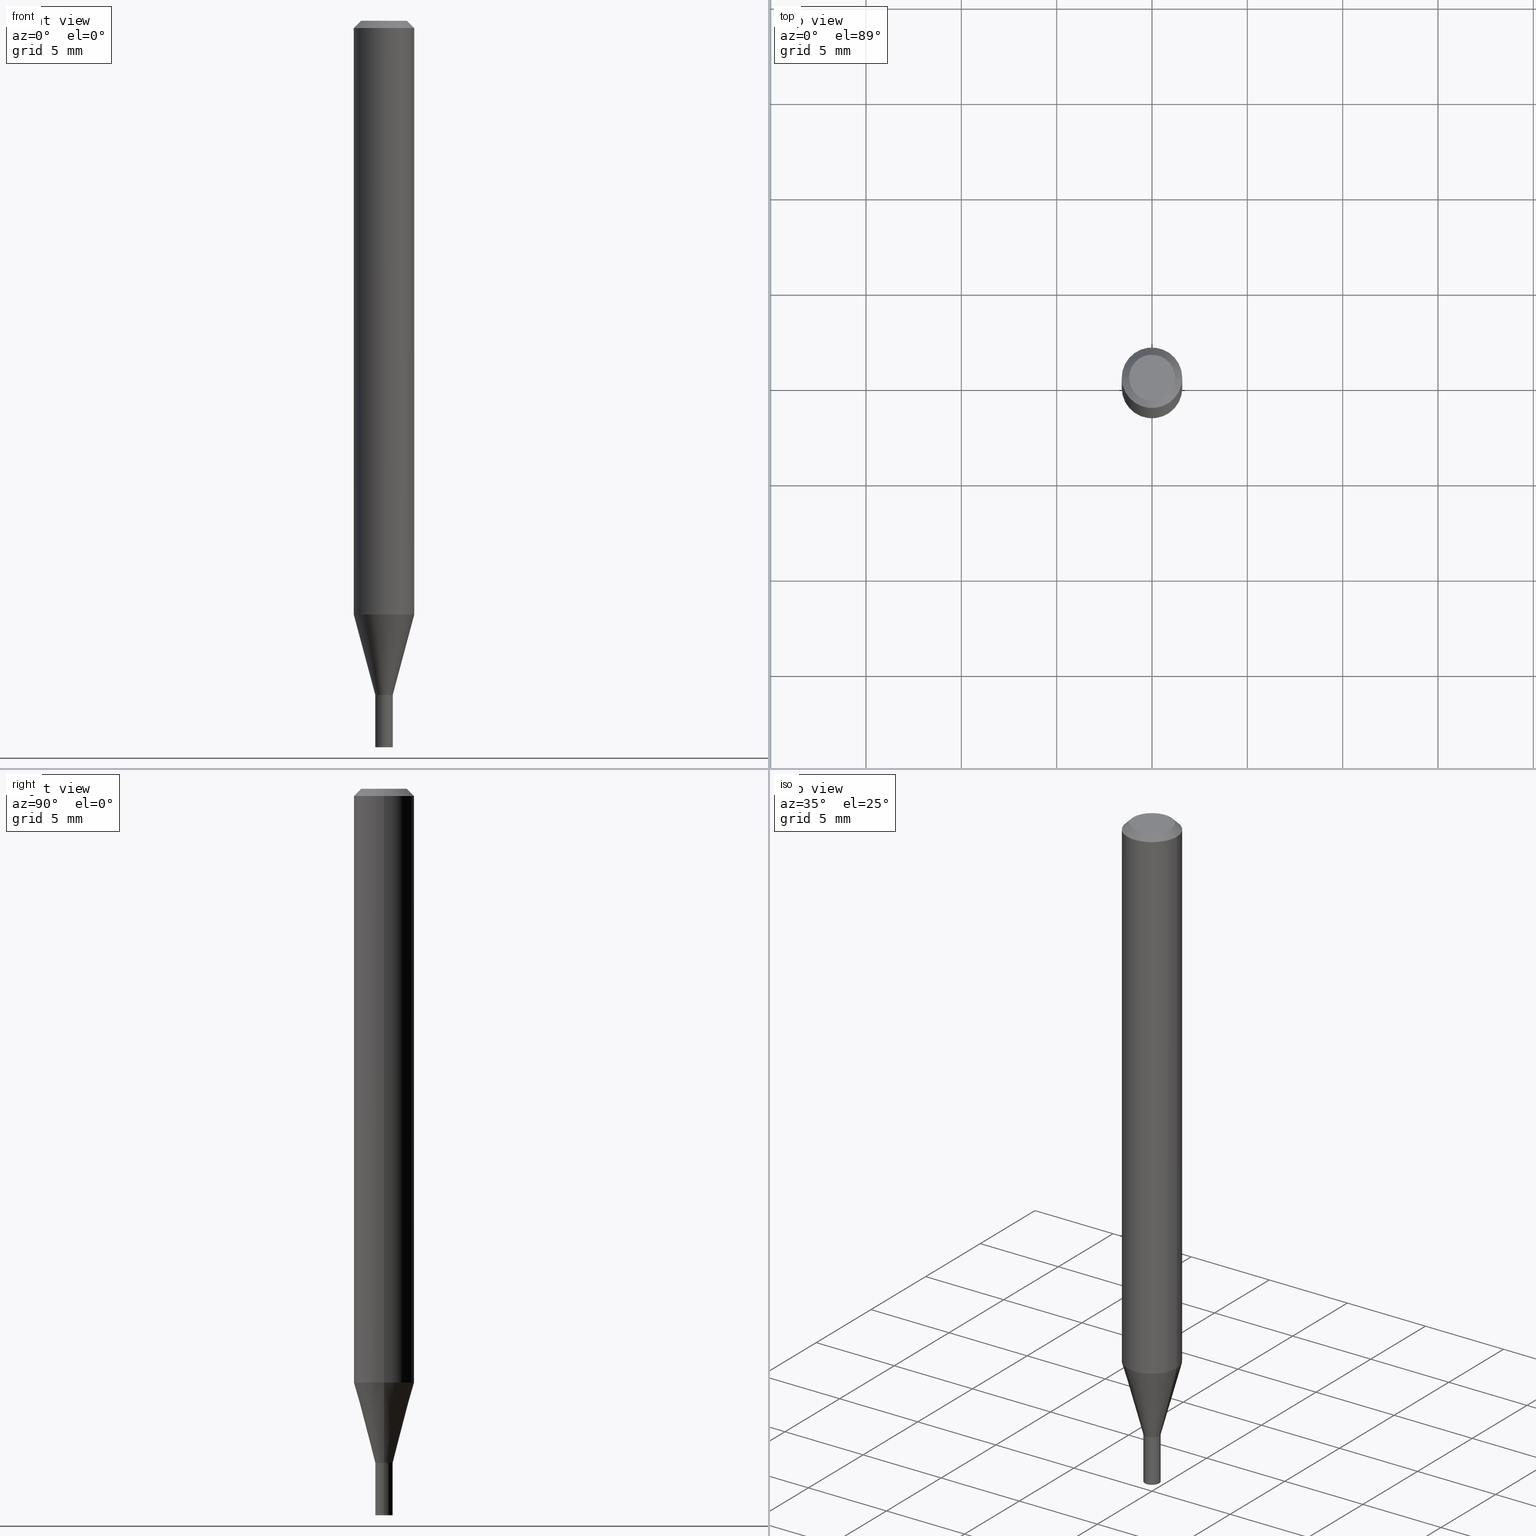
[diagram: canonical four-view strip — front | top / right | iso, engineering-drawing reading convention]
A machine part, canonical four-view strip (front | top / right | iso — engineering-drawing reading convention). The complete STEP part file that produces these views, byte-faithful:
ISO-10303-21;
HEADER;
FILE_DESCRIPTION (( 'STEP AP203' ),
    '1' );
FILE_NAME ('04142.STEP',
    '2024-03-14T17:05:38',
    ( '' ),
    ( '' ),
    'SwSTEP 2.0',
    'SolidWorks 2023',
    '' );
FILE_SCHEMA (( 'CONFIG_CONTROL_DESIGN' ));
ENDSEC;

DATA;
#1 = ORIENTED_EDGE ( 'NONE', *, *, #313, .T. ) ;
#2 = DIRECTION ( 'NONE',  ( 2.445468806185136597E-29, -3.491481338843145583E-15, -1.000000000000000000 ) ) ;
#3 = CARTESIAN_POINT ( 'NONE',  ( 0.06250000000000000000, -4.716725025139311787E-15, -1.225923739063184081 ) ) ;
#4 = CIRCLE ( 'NONE', #100, 0.01799999999999964476 ) ;
#5 = DIRECTION ( 'NONE',  ( 1.000000000000000000, -6.982962677686279332E-15, 0.000000000000000000 ) ) ;
#6 = ORIENTED_EDGE ( 'NONE', *, *, #319, .F. ) ;
#7 = CARTESIAN_POINT ( 'NONE',  ( -0.01799999999999999864, -4.920784323530369756E-15, -1.500000000000000222 ) ) ;
#8 = FACE_OUTER_BOUND ( 'NONE', #215, .T. ) ;
#9 = AXIS2_PLACEMENT_3D ( 'NONE', #43, #259, #49 ) ;
#10 = CALENDAR_DATE ( 2024, 14, 3 ) ;
#11 = DIRECTION ( 'NONE',  ( -2.445468806185136597E-29, 3.491481338843145583E-15, 1.000000000000000000 ) ) ;
#12 = DIRECTION ( 'NONE',  ( -2.445468806185136877E-29, 3.491481338843145188E-15, 1.000000000000000000 ) ) ;
#13 = PERSON_AND_ORGANIZATION ( #161, #256 ) ;
#14 = CIRCLE ( 'NONE', #274, 0.01749999999999999820 ) ;
#15 = AXIS2_PLACEMENT_3D ( 'NONE', #196, #27, #56 ) ;
#16 = CC_DESIGN_DATE_AND_TIME_ASSIGNMENT ( #443, #46, ( #82 ) ) ;
#17 = CARTESIAN_POINT ( 'NONE',  ( -0.01749999999999999820, -4.733147817737530757E-15, -1.391999999999999904 ) ) ;
#18 = PERSON_AND_ORGANIZATION_ROLE ( 'creator' ) ;
#19 = DIRECTION ( 'NONE',  ( 1.000000000000000000, -6.982962677686266711E-15, 4.876176775795935793E-29 ) ) ;
#20 = EDGE_CURVE ( 'NONE', #459, #385, #432, .T. ) ;
#21 = DIRECTION ( 'NONE',  ( 1.000000000000000000, -6.982962677686279332E-15, 0.000000000000000000 ) ) ;
#22 = PRODUCT_RELATED_PRODUCT_CATEGORY ( 'detail', '', ( #268 ) ) ;
#23 = VERTEX_POINT ( 'NONE', #3 ) ;
#24 = AXIS2_PLACEMENT_3D ( 'NONE', #386, #67, #316 ) ;
#25 = CIRCLE ( 'NONE', #245, 0.01799999999999999864 ) ;
#26 = UNCERTAINTY_MEASURE_WITH_UNIT (LENGTH_MEASURE( 1.000000000000000082E-05 ), #33, 'distance_accuracy_value', 'NONE');
#27 = DIRECTION ( 'NONE',  ( -2.445468806185136597E-29, 3.491481338843145583E-15, 1.000000000000000000 ) ) ;
#28 = ORIENTED_EDGE ( 'NONE', *, *, #153, .T. ) ;
#29 = DIRECTION ( 'NONE',  ( 0.000000000000000000, 0.000000000000000000, 1.000000000000000000 ) ) ;
#30 = ORIENTED_EDGE ( 'NONE', *, *, #452, .F. ) ;
#31 = DIRECTION ( 'NONE',  ( 1.000000000000000000, -6.982962677686267499E-15, 4.876176775795935793E-29 ) ) ;
#32 = ORIENTED_EDGE ( 'NONE', *, *, #361, .F. ) ;
#33 =( CONVERSION_BASED_UNIT ( 'INCH', #387 ) LENGTH_UNIT ( ) NAMED_UNIT ( #455 ) );
#34 = ADVANCED_FACE ( 'NONE', ( #382 ), #359, .T. ) ;
#35 = VECTOR ( 'NONE', #40, 39.37007874015748143 ) ;
#36 = ORIENTED_EDGE ( 'NONE', *, *, #68, .F. ) ;
#37 = LINE ( 'NONE', #429, #42 ) ;
#38 = EDGE_LOOP ( 'NONE', ( #454, #422, #61, #77 ) ) ;
#39 = ADVANCED_FACE ( 'NONE', ( #272 ), #76, .T. ) ;
#40 = DIRECTION ( 'NONE',  ( -0.7071067811865642261, 7.493145998870414114E-15, 0.7071067811865309194 ) ) ;
#41 = ORIENTED_EDGE ( 'NONE', *, *, #389, .F. ) ;
#42 = VECTOR ( 'NONE', #287, 39.37007874015748143 ) ;
#43 = CARTESIAN_POINT ( 'NONE',  ( 3.404092578209709663E-29, -4.860142023669657629E-15, -1.391999999999999904 ) ) ;
#44 = EDGE_CURVE ( 'NONE', #201, #23, #283, .T. ) ;
#45 = COORDINATED_UNIVERSAL_TIME_OFFSET ( 5, 0, .BEHIND. ) ;
#46 = DATE_TIME_ROLE ( 'classification_date' ) ;
#47 = LINE ( 'NONE', #121, #156 ) ;
#48 = PERSON_AND_ORGANIZATION ( #161, #256 ) ;
#49 = DIRECTION ( 'NONE',  ( 1.000000000000000000, -6.982962677686250144E-15, 0.000000000000000000 ) ) ;
#50 = APPROVAL ( #298, 'UNSPECIFIED' ) ;
#51 = COORDINATED_UNIVERSAL_TIME_OFFSET ( 5, 0, .BEHIND. ) ;
#52 = CARTESIAN_POINT ( 'NONE',  ( 1.278896122067429216E-44, -1.825924719719875646E-30, -5.229656247639779395E-16 ) ) ;
#53 = AXIS2_PLACEMENT_3D ( 'NONE', #107, #214, #249 ) ;
#54 = CC_DESIGN_APPROVAL ( #170, ( #253 ) ) ;
#55 = EDGE_CURVE ( 'NONE', #96, #211, #349, .T. ) ;
#56 = DIRECTION ( 'NONE',  ( 1.000000000000000000, -6.982962677686253300E-15, 0.000000000000000000 ) ) ;
#57 = ADVANCED_FACE ( 'NONE', ( #279 ), #255, .T. ) ;
#58 = DIRECTION ( 'NONE',  ( -2.438088387897960049E-29, 3.491481338843145188E-15, 1.000000000000000000 ) ) ;
#59 = EDGE_LOOP ( 'NONE', ( #284, #114, #399, #344 ) ) ;
#60 = DIRECTION ( 'NONE',  ( -2.445468806185136597E-29, 3.491481338843145583E-15, 1.000000000000000000 ) ) ;
#61 = ORIENTED_EDGE ( 'NONE', *, *, #391, .F. ) ;
#62 = AXIS2_PLACEMENT_3D ( 'NONE', #441, #446, #226 ) ;
#63 = CIRCLE ( 'NONE', #188, 0.01799999999999999864 ) ;
#64 = ORIENTED_EDGE ( 'NONE', *, *, #236, .F. ) ;
#65 = DIRECTION ( 'NONE',  ( 1.000000000000000000, -6.982962677686250144E-15, 0.000000000000000000 ) ) ;
#66 = EDGE_LOOP ( 'NONE', ( #251, #131, #465, #241 ) ) ;
#67 = DIRECTION ( 'NONE',  ( -2.445468806185136597E-29, 3.491481338843145583E-15, 1.000000000000000000 ) ) ;
#68 = EDGE_CURVE ( 'NONE', #459, #380, #383, .T. ) ;
#69 =( LENGTH_UNIT ( ) NAMED_UNIT ( * ) SI_UNIT ( $, .METRE. ) );
#70 = CC_DESIGN_PERSON_AND_ORGANIZATION_ASSIGNMENT ( #13, #328, ( #82 ) ) ;
#71 = CARTESIAN_POINT ( 'NONE',  ( 0.000000000000000000, 0.000000000000000000, 0.000000000000000000 ) ) ;
#72 = DIRECTION ( 'NONE',  ( 1.000000000000000000, -6.982962677686254878E-15, 0.000000000000000000 ) ) ;
#73 = VECTOR ( 'NONE', #244, 39.37007874015748143 ) ;
#74 = ORIENTED_EDGE ( 'NONE', *, *, #375, .F. ) ;
#75 = CARTESIAN_POINT ( 'NONE',  ( 1.256933281983868125E-16, 0.01799999999999513794, -1.392000000000000126 ) ) ;
#76 = CYLINDRICAL_SURFACE ( 'NONE', #24, 0.01799999999999999864 ) ;
#77 = ORIENTED_EDGE ( 'NONE', *, *, #124, .F. ) ;
#78 = CYLINDRICAL_SURFACE ( 'NONE', #393, 0.06250000000000000000 ) ;
#79 = APPLICATION_CONTEXT ( 'configuration controlled 3d designs of mechanical parts and assemblies' ) ;
#80 = CIRCLE ( 'NONE', #332, 0.04749999999999999362 ) ;
#81 = ORIENTED_EDGE ( 'NONE', *, *, #448, .F. ) ;
#82 = SECURITY_CLASSIFICATION ( '', '', #324 ) ;
#83 = CARTESIAN_POINT ( 'NONE',  ( 3.404092578209710223E-29, -4.860142023669658418E-15, -1.392000000000000126 ) ) ;
#84 = APPROVAL_DATE_TIME ( #194, #50 ) ;
#85 = CARTESIAN_POINT ( 'NONE',  ( -0.06250000000000000000, -3.836200647933857502E-15, -1.225923739063184081 ) ) ;
#86 = AXIS2_PLACEMENT_3D ( 'NONE', #204, #275, #165 ) ;
#87 = DATE_AND_TIME ( #154, #367 ) ;
#88 = PERSON_AND_ORGANIZATION ( #161, #256 ) ;
#89 = FACE_OUTER_BOUND ( 'NONE', #396, .T. ) ;
#90 = VECTOR ( 'NONE', #168, 39.37007874015748854 ) ;
#91 = CARTESIAN_POINT ( 'NONE',  ( 3.668203209277704895E-29, -5.237222008264718177E-15, -1.500000000000000222 ) ) ;
#92 = EDGE_CURVE ( 'NONE', #362, #318, #353, .T. ) ;
#93 = LINE ( 'NONE', #306, #90 ) ;
#94 = CARTESIAN_POINT ( 'NONE',  ( 0.01799999999999964823, -1.256933281983503524E-16, 8.777118196432512908E-31 ) ) ;
#95 = MANIFOLD_SOLID_BREP ( 'Body-Move/Copy2[1]', #311 ) ;
#96 = VERTEX_POINT ( 'NONE', #181 ) ;
#97 = DIRECTION ( 'NONE',  ( 1.000000000000000000, -6.982962677686266711E-15, 0.000000000000000000 ) ) ;
#98 = APPLICATION_CONTEXT ( 'configuration controlled 3d designs of mechanical parts and assemblies' ) ;
#99 = ORIENTED_EDGE ( 'NONE', *, *, #435, .T. ) ;
#100 = AXIS2_PLACEMENT_3D ( 'NONE', #411, #440, #118 ) ;
#101 = CIRCLE ( 'NONE', #343, 0.01799999999999999864 ) ;
#102 = ORIENTED_EDGE ( 'NONE', *, *, #20, .T. ) ;
#103 = DIRECTION ( 'NONE',  ( -2.445468806185136597E-29, 3.491481338843145583E-15, 1.000000000000000000 ) ) ;
#104 = VERTEX_POINT ( 'NONE', #192 ) ;
#105 = CARTESIAN_POINT ( 'NONE',  ( 3.404092578209710223E-29, -4.860142023669658418E-15, -1.392000000000000126 ) ) ;
#106 = CARTESIAN_POINT ( 'NONE',  ( -0.06250000000000000000, -1.722241829083221574E-15, -0.01499999999999999944 ) ) ;
#107 = CARTESIAN_POINT ( 'NONE',  ( 1.278896122067429216E-44, -1.825924719719875646E-30, -5.229656247639779395E-16 ) ) ;
#108 = ADVANCED_FACE ( 'NONE', ( #381 ), #238, .F. ) ;
#109 = CC_DESIGN_PERSON_AND_ORGANIZATION_ASSIGNMENT ( #117, #335, ( #253 ) ) ;
#110 = AXIS2_PLACEMENT_3D ( 'NONE', #395, #358, #5 ) ;
#111 = DIRECTION ( 'NONE',  ( -2.445468806185136597E-29, 3.491481338843145583E-15, 1.000000000000000000 ) ) ;
#112 = LOCAL_TIME ( 13, 5, 38.00000000000000000, #51 ) ;
#113 = ORIENTED_EDGE ( 'NONE', *, *, #452, .T. ) ;
#114 = ORIENTED_EDGE ( 'NONE', *, *, #44, .T. ) ;
#115 = AXIS2_PLACEMENT_3D ( 'NONE', #304, #339, #31 ) ;
#116 = CARTESIAN_POINT ( 'NONE',  ( 0.01799999999999999864, -4.985835351868011408E-15, -1.392000000000000126 ) ) ;
#117 = PERSON_AND_ORGANIZATION ( #161, #256 ) ;
#118 = DIRECTION ( 'NONE',  ( 1.000000000000000000, -6.982962677686254878E-15, 0.000000000000000000 ) ) ;
#119 = ADVANCED_FACE ( 'NONE', ( #199 ), #337, .F. ) ;
#120 =( NAMED_UNIT ( * ) PLANE_ANGLE_UNIT ( ) SI_UNIT ( $, .RADIAN. ) );
#121 = CARTESIAN_POINT ( 'NONE',  ( 0.06250000000000000000, -4.364351673553916694E-16, 3.047610484872459871E-30 ) ) ;
#122 = CALENDAR_DATE ( 2024, 14, 3 ) ;
#123 = CYLINDRICAL_SURFACE ( 'NONE', #115, 0.01799999999999964823 ) ;
#124 = EDGE_CURVE ( 'NONE', #166, #23, #93, .T. ) ;
#125 = DESIGN_CONTEXT ( 'detailed design', #98, 'design' ) ;
#126 = FACE_OUTER_BOUND ( 'NONE', #38, .T. ) ;
#127 = AXIS2_PLACEMENT_3D ( 'NONE', #390, #2, #466 ) ;
#128 = VECTOR ( 'NONE', #237, 39.37007874015748143 ) ;
#129 = LINE ( 'NONE', #94, #128 ) ;
#130 = EDGE_CURVE ( 'NONE', #201, #144, #457, .T. ) ;
#131 = ORIENTED_EDGE ( 'NONE', *, *, #389, .T. ) ;
#132 = CARTESIAN_POINT ( 'NONE',  ( 3.404092578209709663E-29, -4.860142023669657629E-15, -1.391999999999999904 ) ) ;
#133 = VERTEX_POINT ( 'NONE', #7 ) ;
#134 = ORIENTED_EDGE ( 'NONE', *, *, #319, .T. ) ;
#135 = DIRECTION ( 'NONE',  ( 1.000000000000000000, -6.982962677686270655E-15, 0.000000000000000000 ) ) ;
#136 = CC_DESIGN_APPROVAL ( #222, ( #82 ) ) ;
#137 = DIRECTION ( 'NONE',  ( 0.7071067811865598962, -7.319954787623298644E-15, -0.7071067811865351382 ) ) ;
#138 = EDGE_CURVE ( 'NONE', #462, #211, #341, .T. ) ;
#139 = EDGE_LOOP ( 'NONE', ( #285, #434, #309, #169 ) ) ;
#140 = EDGE_CURVE ( 'NONE', #400, #318, #37, .T. ) ;
#141 = CARTESIAN_POINT ( 'NONE',  ( -0.06250000000000000000, 3.840629472727444916E-16, -0.01499999999999999944 ) ) ;
#142 = ORIENTED_EDGE ( 'NONE', *, *, #138, .T. ) ;
#143 = VECTOR ( 'NONE', #282, 39.37007874015748143 ) ;
#144 = VERTEX_POINT ( 'NONE', #106 ) ;
#145 = CC_DESIGN_SECURITY_CLASSIFICATION ( #82, ( #276 ) ) ;
#146 = ORIENTED_EDGE ( 'NONE', *, *, #338, .T. ) ;
#147 = EDGE_LOOP ( 'NONE', ( #252, #270, #377, #30 ) ) ;
#148 = ADVANCED_FACE ( 'NONE', ( #185 ), #220, .F. ) ;
#149 = LOCAL_TIME ( 13, 5, 38.00000000000000000, #370 ) ;
#150 = CYLINDRICAL_SURFACE ( 'NONE', #322, 0.01799999999999999864 ) ;
#151 = CALENDAR_DATE ( 2024, 14, 3 ) ;
#152 = ADVANCED_FACE ( 'NONE', ( #180 ), #351, .T. ) ;
#153 = EDGE_CURVE ( 'NONE', #380, #144, #174, .T. ) ;
#154 = CALENDAR_DATE ( 2024, 14, 3 ) ;
#155 = FACE_OUTER_BOUND ( 'NONE', #147, .T. ) ;
#156 = VECTOR ( 'NONE', #12, 39.37007874015748143 ) ;
#157 = CC_DESIGN_APPROVAL ( #50, ( #276 ) ) ;
#158 = CALENDAR_DATE ( 2024, 14, 3 ) ;
#159 = CARTESIAN_POINT ( 'NONE',  ( 3.404092578209710223E-29, -4.860142023669658418E-15, -1.392000000000000126 ) ) ;
#160 = PERSON_AND_ORGANIZATION ( #161, #256 ) ;
#161 = PERSON ( 'UNSPECIFIED', 'UNSPECIFIED', 'UNSPECIFIED', ('UNSPECIFIED'), ('UNSPECIFIED'), ('UNSPECIFIED') ) ;
#162 = CARTESIAN_POINT ( 'NONE',  ( -0.01799999999999999864, 1.278976924368180238E-16, -8.854083162458829188E-31 ) ) ;
#163 = CARTESIAN_POINT ( 'NONE',  ( 3.404092578209709663E-29, -4.860142023669657629E-15, -1.391999999999999904 ) ) ;
#164 = VECTOR ( 'NONE', #186, 39.37007874015748854 ) ;
#165 = DIRECTION ( 'NONE',  ( -1.000000000000000000, 6.982962677686265922E-15, -4.876176775795935793E-29 ) ) ;
#166 = VERTEX_POINT ( 'NONE', #433 ) ;
#167 = CARTESIAN_POINT ( 'NONE',  ( 0.04749999999999999362, -4.035134999187587991E-16, -5.229656247639753758E-16 ) ) ;
#168 = DIRECTION ( 'NONE',  ( 0.2588190451025212391, 1.565188264969622362E-15, 0.9659258262890679791 ) ) ;
#169 = ORIENTED_EDGE ( 'NONE', *, *, #265, .F. ) ;
#170 = APPROVAL ( #439, 'UNSPECIFIED' ) ;
#171 = CARTESIAN_POINT ( 'NONE',  ( 0.06250000000000000000, -4.811533449433679005E-16, -0.01499999999999999944 ) ) ;
#172 = DIRECTION ( 'NONE',  ( 1.000000000000000000, -6.982962677686265922E-15, 4.876176775795935793E-29 ) ) ;
#173 = CARTESIAN_POINT ( 'NONE',  ( 0.01799999999999999864, -1.256933281983527929E-16, 8.777118196432682816E-31 ) ) ;
#174 = LINE ( 'NONE', #141, #143 ) ;
#175 = AXIS2_PLACEMENT_3D ( 'NONE', #320, #278, #206 ) ;
#176 = EDGE_LOOP ( 'NONE', ( #247, #280, #32, #308 ) ) ;
#177 = DIRECTION ( 'NONE',  ( 2.438088387897960049E-29, -3.491481338843145188E-15, -1.000000000000000000 ) ) ;
#178 = ADVANCED_FACE ( 'NONE', ( #398 ), #78, .T. ) ;
#179 = CARTESIAN_POINT ( 'NONE',  ( -0.01749999999999999820, -4.735797044911639591E-15, -1.391999999999999904 ) ) ;
#180 = FACE_OUTER_BOUND ( 'NONE', #208, .T. ) ;
#181 = CARTESIAN_POINT ( 'NONE',  ( 0.01799999999999999864, -5.362915336463071956E-15, -1.500000000000000222 ) ) ;
#182 = ORIENTED_EDGE ( 'NONE', *, *, #189, .T. ) ;
#183 = APPROVAL_PERSON_ORGANIZATION ( #187, #170, #191 ) ;
#184 = EDGE_LOOP ( 'NONE', ( #64, #1, #340, #356 ) ) ;
#185 = FACE_OUTER_BOUND ( 'NONE', #321, .T. ) ;
#186 = DIRECTION ( 'NONE',  ( -0.2588190451025212391, 5.211531920934549464E-15, 0.9659258262890679791 ) ) ;
#187 = PERSON_AND_ORGANIZATION ( #161, #256 ) ;
#188 = AXIS2_PLACEMENT_3D ( 'NONE', #202, #60, #307 ) ;
#189 = EDGE_CURVE ( 'NONE', #144, #385, #212, .T. ) ;
#190 = DIRECTION ( 'NONE',  ( 1.000000000000000000, -6.982962677686266711E-15, 0.000000000000000000 ) ) ;
#191 = APPROVAL_ROLE ( '' ) ;
#192 = CARTESIAN_POINT ( 'NONE',  ( 0.01799999999999964823, -4.984089611198587537E-15, -1.391500000000000181 ) ) ;
#193 = CARTESIAN_POINT ( 'NONE',  ( 0.000000000000000000, 0.000000000000000000, 0.000000000000000000 ) ) ;
#194 = DATE_AND_TIME ( #10, #413 ) ;
#195 = DATE_AND_TIME ( #158, #149 ) ;
#196 = CARTESIAN_POINT ( 'NONE',  ( 3.402869843806617422E-29, -4.858396283000238492E-15, -1.391500000000000181 ) ) ;
#197 = CIRCLE ( 'NONE', #218, 0.06250000000000000000 ) ;
#198 = LINE ( 'NONE', #162, #296 ) ;
#199 = FACE_OUTER_BOUND ( 'NONE', #430, .T. ) ;
#200 = DIRECTION ( 'NONE',  ( 1.000000000000000000, -6.982962677686254878E-15, 0.000000000000000000 ) ) ;
#201 = VERTEX_POINT ( 'NONE', #85 ) ;
#202 = CARTESIAN_POINT ( 'NONE',  ( 3.668203209277704895E-29, -5.237222008264718177E-15, -1.500000000000000222 ) ) ;
#203 = VECTOR ( 'NONE', #428, 39.37007874015748143 ) ;
#204 = CARTESIAN_POINT ( 'NONE',  ( 3.316907271900976096E-16, 0.04749999999999999362, -4.273281759770383169E-16 ) ) ;
#205 = ORIENTED_EDGE ( 'NONE', *, *, #153, .F. ) ;
#206 = DIRECTION ( 'NONE',  ( -1.000000000000000000, 6.982962677686266711E-15, 0.000000000000000000 ) ) ;
#207 = CARTESIAN_POINT ( 'NONE',  ( -0.01799999999999964823, -4.730498590563421922E-15, -1.391500000000000181 ) ) ;
#208 = EDGE_LOOP ( 'NONE', ( #350, #246, #28, #182 ) ) ;
#209 = DIRECTION ( 'NONE',  ( 1.000000000000000000, -6.982962677686270655E-15, 0.000000000000000000 ) ) ;
#210 = DIRECTION ( 'NONE',  ( 1.000000000000000000, 0.000000000000000000, 0.000000000000000000 ) ) ;
#211 = VERTEX_POINT ( 'NONE', #116 ) ;
#212 = CIRCLE ( 'NONE', #451, 0.06250000000000000000 ) ;
#213 = LOCAL_TIME ( 13, 5, 38.00000000000000000, #295 ) ;
#214 = DIRECTION ( 'NONE',  ( -2.445468806185136597E-29, 3.491481338843145583E-15, 1.000000000000000000 ) ) ;
#215 = EDGE_LOOP ( 'NONE', ( #314, #134, #219, #74 ) ) ;
#216 = CARTESIAN_POINT ( 'NONE',  ( 0.000000000000000000, 0.000000000000000000, 0.000000000000000000 ) ) ;
#217 = AXIS2_PLACEMENT_3D ( 'NONE', #83, #223, #365 ) ;
#218 = AXIS2_PLACEMENT_3D ( 'NONE', #269, #456, #97 ) ;
#219 = ORIENTED_EDGE ( 'NONE', *, *, #265, .T. ) ;
#220 = PLANE ( 'NONE',  #325 ) ;
#221 = CARTESIAN_POINT ( 'NONE',  ( 0.01749999999999999820, -4.982343870529166823E-15, -1.391999999999999904 ) ) ;
#222 = APPROVAL ( #258, 'UNSPECIFIED' ) ;
#223 = DIRECTION ( 'NONE',  ( -2.445468806185136597E-29, 3.491481338843145583E-15, 1.000000000000000000 ) ) ;
#224 = DATE_TIME_ROLE ( 'creation_date' ) ;
#225 = AXIS2_PLACEMENT_3D ( 'NONE', #105, #355, #72 ) ;
#226 = DIRECTION ( 'NONE',  ( 1.000000000000000000, -6.982962677686250144E-15, 0.000000000000000000 ) ) ;
#227 = APPLICATION_PROTOCOL_DEFINITION ( 'international standard', 'config_control_design', 1994, #98 ) ;
#228 = CC_DESIGN_PERSON_AND_ORGANIZATION_ASSIGNMENT ( #160, #364, ( #268 ) ) ;
#229 = SHAPE_DEFINITION_REPRESENTATION ( #233, #414 ) ;
#230 = AXIS2_PLACEMENT_3D ( 'NONE', #388, #111, #209 ) ;
#231 = CARTESIAN_POINT ( 'NONE',  ( 2.997958262640863701E-29, -4.280289857783920907E-15, -1.225923739063184081 ) ) ;
#232 = APPROVAL_PERSON_ORGANIZATION ( #88, #222, #261 ) ;
#233 = PRODUCT_DEFINITION_SHAPE ( 'NONE', 'NONE',  #253 ) ;
#234 = ADVANCED_FACE ( 'NONE', ( #369 ), #409, .T. ) ;
#235 = DIRECTION ( 'NONE',  ( 1.000000000000000000, -6.982962677686279332E-15, 0.000000000000000000 ) ) ;
#236 = EDGE_CURVE ( 'NONE', #400, #201, #331, .T. ) ;
#237 = DIRECTION ( 'NONE',  ( -2.445468806185136877E-29, 3.491481338843145188E-15, 1.000000000000000000 ) ) ;
#238 = PLANE ( 'NONE',  #86 ) ;
#239 = ORIENTED_EDGE ( 'NONE', *, *, #366, .T. ) ;
#240 = ADVANCED_FACE ( 'NONE', ( #155 ), #297, .F. ) ;
#241 = ORIENTED_EDGE ( 'NONE', *, *, #55, .F. ) ;
#242 = FACE_OUTER_BOUND ( 'NONE', #323, .T. ) ;
#243 = AXIS2_PLACEMENT_3D ( 'NONE', #257, #403, #327 ) ;
#244 = DIRECTION ( 'NONE',  ( -2.445468806185136877E-29, 3.491481338843145188E-15, 1.000000000000000000 ) ) ;
#245 = AXIS2_PLACEMENT_3D ( 'NONE', #301, #450, #21 ) ;
#246 = ORIENTED_EDGE ( 'NONE', *, *, #338, .F. ) ;
#247 = ORIENTED_EDGE ( 'NONE', *, *, #391, .T. ) ;
#248 = ORIENTED_EDGE ( 'NONE', *, *, #464, .T. ) ;
#249 = DIRECTION ( 'NONE',  ( 1.000000000000000000, -6.982962677686267499E-15, 4.852736867747366768E-29 ) ) ;
#250 = VECTOR ( 'NONE', #404, 39.37007874015748143 ) ;
#251 = ORIENTED_EDGE ( 'NONE', *, *, #405, .T. ) ;
#252 = ORIENTED_EDGE ( 'NONE', *, *, #313, .F. ) ;
#253 = PRODUCT_DEFINITION ( 'UNKNOWN', '', #276, #125 ) ;
#254 = ORIENTED_EDGE ( 'NONE', *, *, #361, .T. ) ;
#255 = CONICAL_SURFACE ( 'NONE', #225, 0.01799999999999964476, 0.2617993877991499629 ) ;
#256 = ORGANIZATION ( 'UNSPECIFIED', 'UNSPECIFIED', '' ) ;
#257 = CARTESIAN_POINT ( 'NONE',  ( 0.000000000000000000, 0.000000000000000000, 0.000000000000000000 ) ) ;
#258 = APPROVAL_STATUS ( 'not_yet_approved' ) ;
#259 = DIRECTION ( 'NONE',  ( -2.445468806185136597E-29, 3.491481338843145583E-15, 1.000000000000000000 ) ) ;
#260 = CONICAL_SURFACE ( 'NONE', #62, 0.01749999999999999820, 0.7853981633974718157 ) ;
#261 = APPROVAL_ROLE ( '' ) ;
#262 = DIRECTION ( 'NONE',  ( 1.000000000000000000, -6.982962677686266711E-15, 4.876176775795935232E-29 ) ) ;
#263 = APPROVAL_DATE_TIME ( #292, #222 ) ;
#264 = DIRECTION ( 'NONE',  ( -2.445468806185136597E-29, 3.491481338843145583E-15, 1.000000000000000000 ) ) ;
#265 = EDGE_CURVE ( 'NONE', #345, #104, #363, .T. ) ;
#266 = DIRECTION ( 'NONE',  ( -2.445468806185136597E-29, 3.491481338843145583E-15, 1.000000000000000000 ) ) ;
#267 = CARTESIAN_POINT ( 'NONE',  ( 3.404092578209709663E-29, -4.860142023669657629E-15, -1.391999999999999904 ) ) ;
#268 = PRODUCT ( '04142', '04142', '', ( #421 ) ) ;
#269 = CARTESIAN_POINT ( 'NONE',  ( 3.668203209277705088E-31, -5.237222008264718399E-17, -0.01499999999999999944 ) ) ;
#270 = ORIENTED_EDGE ( 'NONE', *, *, #140, .T. ) ;
#271 = DIRECTION ( 'NONE',  ( -2.445468806185136597E-29, 3.491481338843145583E-15, 1.000000000000000000 ) ) ;
#272 = FACE_OUTER_BOUND ( 'NONE', #66, .T. ) ;
#273 = CYLINDRICAL_SURFACE ( 'NONE', #333, 0.06250000000000000000 ) ;
#274 = AXIS2_PLACEMENT_3D ( 'NONE', #132, #342, #424 ) ;
#275 = DIRECTION ( 'NONE',  ( 2.438088387897960049E-29, -3.491481338843145188E-15, -1.000000000000000000 ) ) ;
#276 = PRODUCT_DEFINITION_FORMATION_WITH_SPECIFIED_SOURCE ( 'ANY', '', #268, .NOT_KNOWN. ) ;
#277 = ADVANCED_FACE ( 'NONE', ( #8 ), #260, .T. ) ;
#278 = DIRECTION ( 'NONE',  ( 2.445468806185136597E-29, -3.491481338843145583E-15, -1.000000000000000000 ) ) ;
#279 = FACE_OUTER_BOUND ( 'NONE', #184, .T. ) ;
#280 = ORIENTED_EDGE ( 'NONE', *, *, #130, .T. ) ;
#281 = EDGE_CURVE ( 'NONE', #23, #385, #47, .T. ) ;
#282 = DIRECTION ( 'NONE',  ( -0.7071067811865598962, 2.468850131082386434E-15, -0.7071067811865351382 ) ) ;
#283 = CIRCLE ( 'NONE', #230, 0.06250000000000000000 ) ;
#284 = ORIENTED_EDGE ( 'NONE', *, *, #130, .F. ) ;
#285 = ORIENTED_EDGE ( 'NONE', *, *, #448, .T. ) ;
#286 = ORIENTED_EDGE ( 'NONE', *, *, #300, .F. ) ;
#287 = DIRECTION ( 'NONE',  ( -2.445468806185136877E-29, 3.491481338843145188E-15, 1.000000000000000000 ) ) ;
#288 = CC_DESIGN_PERSON_AND_ORGANIZATION_ASSIGNMENT ( #330, #294, ( #276 ) ) ;
#289 = AXIS2_PLACEMENT_3D ( 'NONE', #310, #449, #417 ) ;
#290 = ADVANCED_FACE ( 'NONE', ( #329 ), #150, .T. ) ;
#291 = DIRECTION ( 'NONE',  ( -2.445468806185136597E-29, 3.491481338843145583E-15, 1.000000000000000000 ) ) ;
#292 = DATE_AND_TIME ( #122, #112 ) ;
#293 = CARTESIAN_POINT ( 'NONE',  ( -0.01799999999999964476, -4.732244331232842637E-15, -1.392000000000000126 ) ) ;
#294 = PERSON_AND_ORGANIZATION_ROLE ( 'design_supplier' ) ;
#295 = COORDINATED_UNIVERSAL_TIME_OFFSET ( 5, 0, .BEHIND. ) ;
#296 = VECTOR ( 'NONE', #460, 39.37007874015748143 ) ;
#297 = CYLINDRICAL_SURFACE ( 'NONE', #243, 0.01799999999999964823 ) ;
#298 = APPROVAL_STATUS ( 'not_yet_approved' ) ;
#299 = PLANE ( 'NONE',  #402 ) ;
#300 = EDGE_CURVE ( 'NONE', #166, #400, #4, .T. ) ;
#301 = CARTESIAN_POINT ( 'NONE',  ( 3.404092578209710223E-29, -4.860142023669658418E-15, -1.392000000000000126 ) ) ;
#302 = CC_DESIGN_PERSON_AND_ORGANIZATION_ASSIGNMENT ( #410, #18, ( #276 ) ) ;
#303 = CLOSED_SHELL ( 'NONE', ( #240, #234, #34, #178, #348, #57, #431, #152, #108, #119, #277, #378 ) ) ;
#304 = CARTESIAN_POINT ( 'NONE',  ( 0.000000000000000000, 0.000000000000000000, 0.000000000000000000 ) ) ;
#305 = CIRCLE ( 'NONE', #289, 0.01799999999999964823 ) ;
#306 = CARTESIAN_POINT ( 'NONE',  ( 0.01799999999999964476, -4.985835351868008252E-15, -1.392000000000000126 ) ) ;
#307 = DIRECTION ( 'NONE',  ( 1.000000000000000000, -6.982962677686279332E-15, 0.000000000000000000 ) ) ;
#308 = ORIENTED_EDGE ( 'NONE', *, *, #281, .F. ) ;
#309 = ORIENTED_EDGE ( 'NONE', *, *, #366, .F. ) ;
#310 = CARTESIAN_POINT ( 'NONE',  ( 3.402869843806617422E-29, -4.858396283000238492E-15, -1.391500000000000181 ) ) ;
#311 = CLOSED_SHELL ( 'NONE', ( #39, #354, #290, #148 ) ) ;
#312 = EDGE_LOOP ( 'NONE', ( #41, #248, #427, #420 ) ) ;
#313 = EDGE_CURVE ( 'NONE', #400, #166, #423, .T. ) ;
#314 = ORIENTED_EDGE ( 'NONE', *, *, #92, .F. ) ;
#315 = CIRCLE ( 'NONE', #373, 0.01749999999999999820 ) ;
#316 = DIRECTION ( 'NONE',  ( 1.000000000000000000, -6.982962677686266711E-15, 4.876176775795935232E-29 ) ) ;
#317 = DIRECTION ( 'NONE',  ( -1.000000000000000000, 6.982962677686265922E-15, -4.876176775795935793E-29 ) ) ;
#318 = VERTEX_POINT ( 'NONE', #207 ) ;
#319 = EDGE_CURVE ( 'NONE', #362, #345, #14, .T. ) ;
#320 = CARTESIAN_POINT ( 'NONE',  ( 3.668203209277705088E-31, -5.237222008264718399E-17, -0.01499999999999999944 ) ) ;
#321 = EDGE_LOOP ( 'NONE', ( #99, #142 ) ) ;
#322 = AXIS2_PLACEMENT_3D ( 'NONE', #193, #291, #262 ) ;
#323 = EDGE_LOOP ( 'NONE', ( #347, #286, #113, #239 ) ) ;
#324 = SECURITY_CLASSIFICATION_LEVEL ( 'unclassified' ) ;
#325 = AXIS2_PLACEMENT_3D ( 'NONE', #75, #177, #317 ) ;
#326 = CIRCLE ( 'NONE', #463, 0.06250000000000000000 ) ;
#327 = DIRECTION ( 'NONE',  ( 1.000000000000000000, -6.982962677686267499E-15, 4.876176775795935793E-29 ) ) ;
#328 = PERSON_AND_ORGANIZATION_ROLE ( 'classification_officer' ) ;
#329 = FACE_OUTER_BOUND ( 'NONE', #312, .T. ) ;
#330 = PERSON_AND_ORGANIZATION ( #161, #256 ) ;
#331 = LINE ( 'NONE', #293, #164 ) ;
#332 = AXIS2_PLACEMENT_3D ( 'NONE', #52, #266, #412 ) ;
#333 = AXIS2_PLACEMENT_3D ( 'NONE', #376, #264, #19 ) ;
#334 = CARTESIAN_POINT ( 'NONE',  ( 0.01749999999999999820, -4.982343870529166823E-15, -1.391999999999999904 ) ) ;
#335 = PERSON_AND_ORGANIZATION_ROLE ( 'creator' ) ;
#336 = DIRECTION ( 'NONE',  ( -2.445468806185136597E-29, 3.491481338843145583E-15, 1.000000000000000000 ) ) ;
#337 = PLANE ( 'NONE',  #437 ) ;
#338 = EDGE_CURVE ( 'NONE', #380, #459, #80, .T. ) ;
#339 = DIRECTION ( 'NONE',  ( -2.445468806185136597E-29, 3.491481338843145583E-15, 1.000000000000000000 ) ) ;
#340 = ORIENTED_EDGE ( 'NONE', *, *, #124, .T. ) ;
#341 = CIRCLE ( 'NONE', #110, 0.01799999999999999864 ) ;
#342 = DIRECTION ( 'NONE',  ( -2.445468806185136597E-29, 3.491481338843145583E-15, 1.000000000000000000 ) ) ;
#343 = AXIS2_PLACEMENT_3D ( 'NONE', #91, #271, #235 ) ;
#344 = ORIENTED_EDGE ( 'NONE', *, *, #189, .F. ) ;
#345 = VERTEX_POINT ( 'NONE', #334 ) ;
#346 = CARTESIAN_POINT ( 'NONE',  ( -0.04749999999999999362, 3.578768372314202124E-16, -5.229656247639803061E-16 ) ) ;
#347 = ORIENTED_EDGE ( 'NONE', *, *, #140, .F. ) ;
#348 = ADVANCED_FACE ( 'NONE', ( #126 ), #425, .T. ) ;
#349 = LINE ( 'NONE', #173, #203 ) ;
#350 = ORIENTED_EDGE ( 'NONE', *, *, #20, .F. ) ;
#351 = CONICAL_SURFACE ( 'NONE', #127, 0.06250000000000000000, 0.7853981633974658205 ) ;
#352 = AXIS2_PLACEMENT_3D ( 'NONE', #71, #29, #210 ) ;
#353 = LINE ( 'NONE', #179, #35 ) ;
#354 = ADVANCED_FACE ( 'NONE', ( #89 ), #299, .F. ) ;
#355 = DIRECTION ( 'NONE',  ( -2.445468806185136597E-29, 3.491481338843145583E-15, 1.000000000000000000 ) ) ;
#356 = ORIENTED_EDGE ( 'NONE', *, *, #44, .F. ) ;
#357 = DIRECTION ( 'NONE',  ( -2.445468806185136597E-29, 3.491481338843145583E-15, 1.000000000000000000 ) ) ;
#358 = DIRECTION ( 'NONE',  ( -2.445468806185136597E-29, 3.491481338843145583E-15, 1.000000000000000000 ) ) ;
#359 = CONICAL_SURFACE ( 'NONE', #175, 0.06250000000000000000, 0.7853981633974658205 ) ;
#360 = CIRCLE ( 'NONE', #15, 0.01799999999999964823 ) ;
#361 = EDGE_CURVE ( 'NONE', #385, #144, #197, .T. ) ;
#362 = VERTEX_POINT ( 'NONE', #17 ) ;
#363 = LINE ( 'NONE', #221, #250 ) ;
#364 = PERSON_AND_ORGANIZATION_ROLE ( 'design_owner' ) ;
#365 = DIRECTION ( 'NONE',  ( 1.000000000000000000, -6.982962677686254878E-15, 0.000000000000000000 ) ) ;
#366 = EDGE_CURVE ( 'NONE', #104, #318, #360, .T. ) ;
#367 = LOCAL_TIME ( 13, 5, 38.00000000000000000, #45 ) ;
#368 = COORDINATED_UNIVERSAL_TIME_OFFSET ( 5, 0, .BEHIND. ) ;
#369 = FACE_OUTER_BOUND ( 'NONE', #139, .T. ) ;
#370 = COORDINATED_UNIVERSAL_TIME_OFFSET ( 5, 0, .BEHIND. ) ;
#371 =( NAMED_UNIT ( * ) SI_UNIT ( $, .STERADIAN. ) SOLID_ANGLE_UNIT ( ) );
#372 = CARTESIAN_POINT ( 'NONE',  ( 3.576687321579069994E-29, -5.368277968210015545E-15, -1.500000000000000222 ) ) ;
#373 = AXIS2_PLACEMENT_3D ( 'NONE', #163, #453, #65 ) ;
#374 = CARTESIAN_POINT ( 'NONE',  ( 0.06250000000000000000, -4.888073874380388472E-16, -0.01499999999999999944 ) ) ;
#375 = EDGE_CURVE ( 'NONE', #318, #104, #305, .T. ) ;
#376 = CARTESIAN_POINT ( 'NONE',  ( 0.000000000000000000, 0.000000000000000000, 0.000000000000000000 ) ) ;
#377 = ORIENTED_EDGE ( 'NONE', *, *, #375, .T. ) ;
#378 = ADVANCED_FACE ( 'NONE', ( #242 ), #123, .F. ) ;
#379 = CARTESIAN_POINT ( 'NONE',  ( -0.01799999999999999864, -4.920784323530369756E-15, -1.392000000000000126 ) ) ;
#380 = VERTEX_POINT ( 'NONE', #346 ) ;
#381 = FACE_OUTER_BOUND ( 'NONE', #397, .T. ) ;
#382 = FACE_OUTER_BOUND ( 'NONE', #436, .T. ) ;
#383 = CIRCLE ( 'NONE', #53, 0.04749999999999999362 ) ;
#384 = FACE_OUTER_BOUND ( 'NONE', #59, .T. ) ;
#385 = VERTEX_POINT ( 'NONE', #374 ) ;
#386 = CARTESIAN_POINT ( 'NONE',  ( 0.000000000000000000, 0.000000000000000000, 0.000000000000000000 ) ) ;
#387 = LENGTH_MEASURE_WITH_UNIT ( LENGTH_MEASURE( 0.02539999999999999897 ), #69 );
#388 = CARTESIAN_POINT ( 'NONE',  ( 2.997958262640863701E-29, -4.280289857783920907E-15, -1.225923739063184081 ) ) ;
#389 = EDGE_CURVE ( 'NONE', #133, #462, #198, .T. ) ;
#390 = CARTESIAN_POINT ( 'NONE',  ( 3.668203209277705088E-31, -5.237222008264718399E-17, -0.01499999999999999944 ) ) ;
#391 = EDGE_CURVE ( 'NONE', #23, #201, #326, .T. ) ;
#392 = ORIENTED_EDGE ( 'NONE', *, *, #405, .F. ) ;
#393 = AXIS2_PLACEMENT_3D ( 'NONE', #216, #357, #442 ) ;
#394 =( GEOMETRIC_REPRESENTATION_CONTEXT ( 3 ) GLOBAL_UNCERTAINTY_ASSIGNED_CONTEXT ( ( #26 ) ) GLOBAL_UNIT_ASSIGNED_CONTEXT ( ( #33, #120, #371 ) ) REPRESENTATION_CONTEXT ( 'NONE', 'WORKASPACE' ) );
#395 = CARTESIAN_POINT ( 'NONE',  ( 3.404092578209710223E-29, -4.860142023669658418E-15, -1.392000000000000126 ) ) ;
#396 = EDGE_LOOP ( 'NONE', ( #392, #418 ) ) ;
#397 = EDGE_LOOP ( 'NONE', ( #146, #461 ) ) ;
#398 = FACE_OUTER_BOUND ( 'NONE', #176, .T. ) ;
#399 = ORIENTED_EDGE ( 'NONE', *, *, #281, .T. ) ;
#400 = VERTEX_POINT ( 'NONE', #415 ) ;
#401 = CC_DESIGN_DATE_AND_TIME_ASSIGNMENT ( #87, #224, ( #253 ) ) ;
#402 = AXIS2_PLACEMENT_3D ( 'NONE', #372, #58, #172 ) ;
#403 = DIRECTION ( 'NONE',  ( -2.445468806185136597E-29, 3.491481338843145583E-15, 1.000000000000000000 ) ) ;
#404 = DIRECTION ( 'NONE',  ( 0.7071067811865642261, -2.468850131082431399E-15, 0.7071067811865309194 ) ) ;
#405 = EDGE_CURVE ( 'NONE', #96, #133, #101, .T. ) ;
#406 = MANIFOLD_SOLID_BREP ( 'Body-Move/Copy2[2]', #303 ) ;
#407 = CARTESIAN_POINT ( 'NONE',  ( 3.668203209277705088E-31, -5.237222008264718399E-17, -0.01499999999999999944 ) ) ;
#408 = APPROVAL_DATE_TIME ( #195, #170 ) ;
#409 = CONICAL_SURFACE ( 'NONE', #9, 0.01749999999999999820, 0.7853981633974718157 ) ;
#410 = PERSON_AND_ORGANIZATION ( #161, #256 ) ;
#411 = CARTESIAN_POINT ( 'NONE',  ( 3.404092578209710223E-29, -4.860142023669658418E-15, -1.392000000000000126 ) ) ;
#412 = DIRECTION ( 'NONE',  ( 1.000000000000000000, -6.982962677686267499E-15, 4.852736867747366768E-29 ) ) ;
#413 = LOCAL_TIME ( 13, 5, 38.00000000000000000, #368 ) ;
#414 = ADVANCED_BREP_SHAPE_REPRESENTATION ( '04142', ( #95, #406, #352 ), #394 ) ;
#415 = CARTESIAN_POINT ( 'NONE',  ( -0.01799999999999964476, -4.284222489583350069E-15, -1.392000000000000126 ) ) ;
#416 = DIRECTION ( 'NONE',  ( 1.000000000000000000, -6.982962677686265922E-15, 4.876176775795935793E-29 ) ) ;
#417 = DIRECTION ( 'NONE',  ( 1.000000000000000000, -6.982962677686253300E-15, 0.000000000000000000 ) ) ;
#418 = ORIENTED_EDGE ( 'NONE', *, *, #464, .F. ) ;
#419 = CARTESIAN_POINT ( 'NONE',  ( -0.06250000000000000000, 4.440892098500626162E-16, -3.074334431409316114E-30 ) ) ;
#420 = ORIENTED_EDGE ( 'NONE', *, *, #138, .F. ) ;
#421 = MECHANICAL_CONTEXT ( 'NONE', #79, 'mechanical' ) ;
#422 = ORIENTED_EDGE ( 'NONE', *, *, #236, .T. ) ;
#423 = CIRCLE ( 'NONE', #217, 0.01799999999999964476 ) ;
#424 = DIRECTION ( 'NONE',  ( 1.000000000000000000, -6.982962677686250144E-15, 0.000000000000000000 ) ) ;
#425 = CONICAL_SURFACE ( 'NONE', #445, 0.01799999999999964476, 0.2617993877991499629 ) ;
#426 = DIRECTION ( 'NONE',  ( -2.438088387897960049E-29, 3.491481338843145188E-15, 1.000000000000000000 ) ) ;
#427 = ORIENTED_EDGE ( 'NONE', *, *, #55, .T. ) ;
#428 = DIRECTION ( 'NONE',  ( -2.445468806185136877E-29, 3.491481338843145188E-15, 1.000000000000000000 ) ) ;
#429 = CARTESIAN_POINT ( 'NONE',  ( -0.01799999999999964823, 1.278976924368155340E-16, -8.854083162458657529E-31 ) ) ;
#430 = EDGE_LOOP ( 'NONE', ( #81, #6 ) ) ;
#431 = ADVANCED_FACE ( 'NONE', ( #384 ), #273, .T. ) ;
#432 = LINE ( 'NONE', #171, #444 ) ;
#433 = CARTESIAN_POINT ( 'NONE',  ( 0.01799999999999964476, -4.985835351868008252E-15, -1.392000000000000126 ) ) ;
#434 = ORIENTED_EDGE ( 'NONE', *, *, #92, .T. ) ;
#435 = EDGE_CURVE ( 'NONE', #211, #462, #25, .T. ) ;
#436 = EDGE_LOOP ( 'NONE', ( #36, #102, #254, #205 ) ) ;
#437 = AXIS2_PLACEMENT_3D ( 'NONE', #267, #426, #416 ) ;
#438 = APPROVAL_PERSON_ORGANIZATION ( #48, #50, #447 ) ;
#439 = APPROVAL_STATUS ( 'not_yet_approved' ) ;
#440 = DIRECTION ( 'NONE',  ( -2.445468806185136597E-29, 3.491481338843145583E-15, 1.000000000000000000 ) ) ;
#441 = CARTESIAN_POINT ( 'NONE',  ( 3.404092578209709663E-29, -4.860142023669657629E-15, -1.391999999999999904 ) ) ;
#442 = DIRECTION ( 'NONE',  ( 1.000000000000000000, -6.982962677686266711E-15, 4.876176775795935793E-29 ) ) ;
#443 = DATE_AND_TIME ( #151, #213 ) ;
#444 = VECTOR ( 'NONE', #137, 39.37007874015748143 ) ;
#445 = AXIS2_PLACEMENT_3D ( 'NONE', #159, #103, #200 ) ;
#446 = DIRECTION ( 'NONE',  ( -2.445468806185136597E-29, 3.491481338843145583E-15, 1.000000000000000000 ) ) ;
#447 = APPROVAL_ROLE ( '' ) ;
#448 = EDGE_CURVE ( 'NONE', #345, #362, #315, .T. ) ;
#449 = DIRECTION ( 'NONE',  ( -2.445468806185136597E-29, 3.491481338843145583E-15, 1.000000000000000000 ) ) ;
#450 = DIRECTION ( 'NONE',  ( -2.445468806185136597E-29, 3.491481338843145583E-15, 1.000000000000000000 ) ) ;
#451 = AXIS2_PLACEMENT_3D ( 'NONE', #407, #11, #190 ) ;
#452 = EDGE_CURVE ( 'NONE', #166, #104, #129, .T. ) ;
#453 = DIRECTION ( 'NONE',  ( -2.445468806185136597E-29, 3.491481338843145583E-15, 1.000000000000000000 ) ) ;
#454 = ORIENTED_EDGE ( 'NONE', *, *, #300, .T. ) ;
#455 = DIMENSIONAL_EXPONENTS ( 1.000000000000000000, 0.000000000000000000, 0.000000000000000000, 0.000000000000000000, 0.000000000000000000, 0.000000000000000000, 0.000000000000000000 ) ;
#456 = DIRECTION ( 'NONE',  ( -2.445468806185136597E-29, 3.491481338843145583E-15, 1.000000000000000000 ) ) ;
#457 = LINE ( 'NONE', #419, #73 ) ;
#458 = APPLICATION_PROTOCOL_DEFINITION ( 'international standard', 'config_control_design', 1994, #79 ) ;
#459 = VERTEX_POINT ( 'NONE', #167 ) ;
#460 = DIRECTION ( 'NONE',  ( -2.445468806185136877E-29, 3.491481338843145188E-15, 1.000000000000000000 ) ) ;
#461 = ORIENTED_EDGE ( 'NONE', *, *, #68, .T. ) ;
#462 = VERTEX_POINT ( 'NONE', #379 ) ;
#463 = AXIS2_PLACEMENT_3D ( 'NONE', #231, #336, #135 ) ;
#464 = EDGE_CURVE ( 'NONE', #133, #96, #63, .T. ) ;
#465 = ORIENTED_EDGE ( 'NONE', *, *, #435, .F. ) ;
#466 = DIRECTION ( 'NONE',  ( -1.000000000000000000, 6.982962677686266711E-15, 0.000000000000000000 ) ) ;
ENDSEC;
END-ISO-10303-21;
